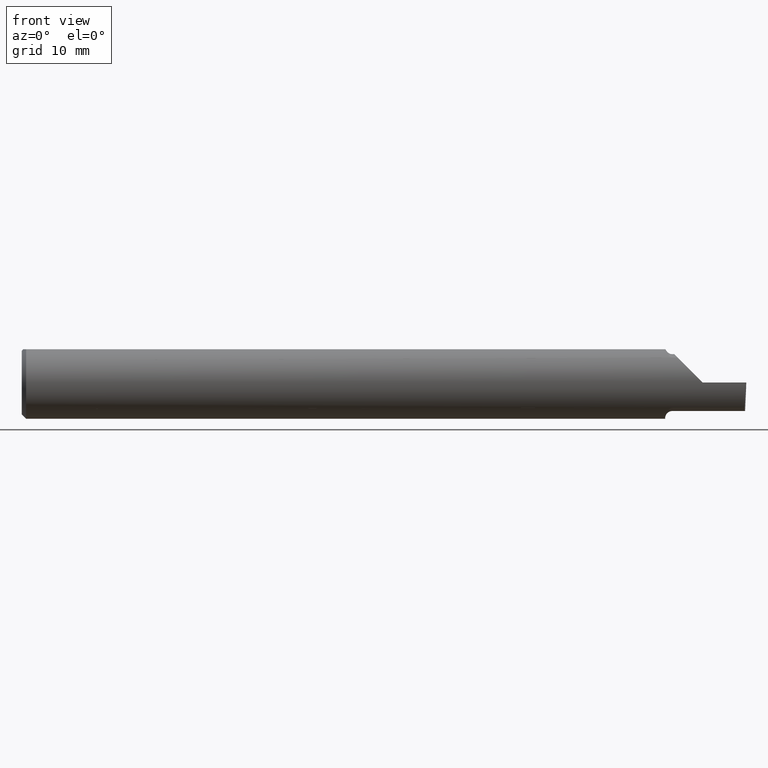
[diagram: clean part render]
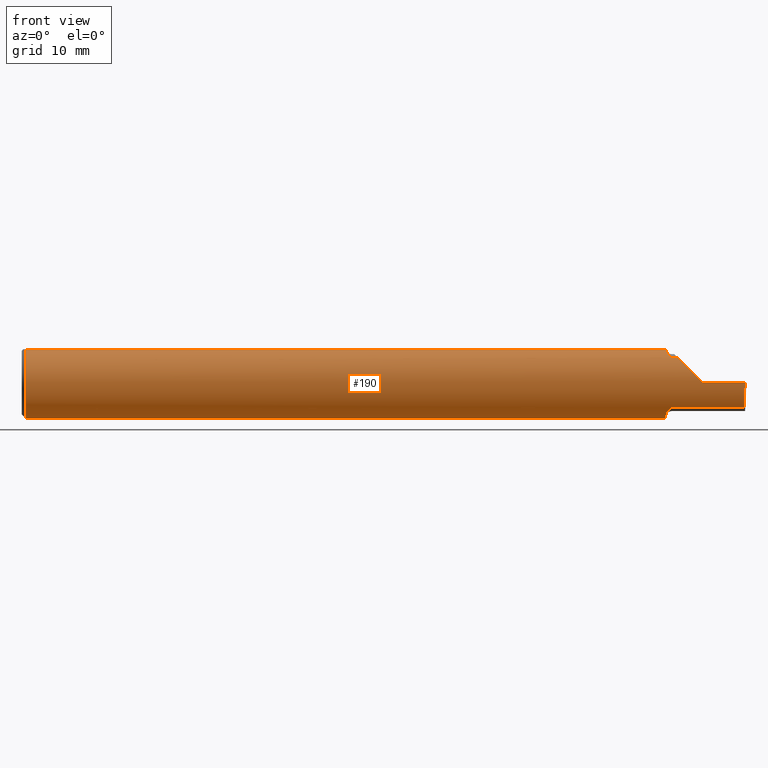
[diagram: same view with one face highlighted and labeled with its STEP entity id]
A machine part, front view. The second image highlights one B-rep face of the part: STEP entity #190.
In plain terms, the highlighted cylindrical surface (edge-blend (fillet) strip) has radius 3.1712 mm, axis along (-1, -0, -0).
Its self-contained STEP definition (entity closure, byte-faithful):
#14 = VERTEX_POINT ( 'NONE', #137 ) ;
#19 = DIRECTION ( 'NONE',  ( -1.000000000000000000, -0.000000000000000000, -0.000000000000000000 ) ) ;
#22 = EDGE_CURVE ( 'NONE', #14, #711, #694, .T. ) ;
#26 = ORIENTED_EDGE ( 'NONE', *, *, #185, .F. ) ;
#27 = VECTOR ( 'NONE', #464, 39.37007874015748143 ) ;
#41 = CARTESIAN_POINT ( 'NONE',  ( 2.350000000000000089, -0.1248500000000000026, 1.836970198721028825E-17 ) ) ;
#50 = B_SPLINE_CURVE_WITH_KNOTS ( 'NONE', 3,
 ( #439, #680, #138, #384 ),
 .UNSPECIFIED., .F., .F.,
 ( 4, 4 ),
 ( 0.001640801893433578747, 0.002088276671954489034 ),
 .UNSPECIFIED. ) ;
#56 = VERTEX_POINT ( 'NONE', #524 ) ;
#57 = CARTESIAN_POINT ( 'NONE',  ( 2.239784064659362528, -0.08911389870154562409, -0.08746251087962761406 ) ) ;
#58 = CYLINDRICAL_SURFACE ( 'NONE', #507, 0.1248500000000000026 ) ;
#59 = ORIENTED_EDGE ( 'NONE', *, *, #499, .T. ) ;
#60 = EDGE_LOOP ( 'NONE', ( #590, #718, #59, #301, #339, #26, #679, #446, #64, #345, #477, #408, #560, #466 ) ) ;
#64 = ORIENTED_EDGE ( 'NONE', *, *, #357, .F. ) ;
#73 = CARTESIAN_POINT ( 'NONE',  ( 2.245000000000000107, -0.09015216647662478711, -0.08637192471845771269 ) ) ;
#77 = EDGE_CURVE ( 'NONE', #570, #391, #168, .T. ) ;
#81 = DIRECTION ( 'NONE',  ( 0.000000000000000000, 0.000000000000000000, 1.000000000000000000 ) ) ;
#94 = DIRECTION ( 'NONE',  ( 1.000000000000000000, 0.000000000000000000, 0.000000000000000000 ) ) ;
#97 = CARTESIAN_POINT ( 'NONE',  ( 2.493072779947982820, -0.1248043149033065263, -0.09996577117162364079 ) ) ;
#100 = CARTESIAN_POINT ( 'NONE',  ( 2.234311064734461283, -0.08485061678078677228, -0.09161469295857038730 ) ) ;
#124 = CARTESIAN_POINT ( 'NONE',  ( 0.01499999999999999944, 0.000000000000000000, -0.1248500000000000026 ) ) ;
#129 = AXIS2_PLACEMENT_3D ( 'NONE', #733, #664, #135 ) ;
#135 = DIRECTION ( 'NONE',  ( 0.000000000000000000, 0.000000000000000000, -1.000000000000000000 ) ) ;
#137 = CARTESIAN_POINT ( 'NONE',  ( 2.494033449660866708, -0.09015216647662482874, -0.08637192471845768493 ) ) ;
#138 = CARTESIAN_POINT ( 'NONE',  ( 2.219999999999999751, -0.03284222813693380566, -0.1205938689030582739 ) ) ;
#139 = CARTESIAN_POINT ( 'NONE',  ( 2.221326891871132858, -0.04895916665958129077, 0.1148500000000000076 ) ) ;
#140 =( BOUNDED_CURVE ( )  B_SPLINE_CURVE ( 3, ( #159, #155, #295, #348 ),
 .UNSPECIFIED., .F., .T. ) 
 B_SPLINE_CURVE_WITH_KNOTS ( ( 4, 4 ),
 ( 0.2190942387645742062, 0.9826237902197102470 ),
 .UNSPECIFIED. ) 
 CURVE ( )  GEOMETRIC_REPRESENTATION_ITEM ( )  RATIONAL_B_SPLINE_CURVE ( ( 1.000000000000000000, 0.9520057322288819623, 0.9520057322288819623, 1.000000000000000000 ) ) 
 REPRESENTATION_ITEM ( '' )  );
#143 = CARTESIAN_POINT ( 'NONE',  ( 0.000000000000000000, 0.04895916665957456698, 0.1148500000000000076 ) ) ;
#145 = VERTEX_POINT ( 'NONE', #173 ) ;
#148 = B_SPLINE_CURVE_WITH_KNOTS ( 'NONE', 3,
 ( #221, #480, #57, #151, #100, #635, #302, #281, #785, #701, #278, #630 ),
 .UNSPECIFIED., .F., .F.,
 ( 4, 2, 2, 2, 2, 4 ),
 ( 1.963988863453036158E-07, 0.0002052720857047455423, 0.0004103477725231457476, 0.0008204991461599567834, 0.001230650519796767711, 0.001640801893433578747 ),
 .UNSPECIFIED. ) ;
#151 = CARTESIAN_POINT ( 'NONE',  ( 2.235875432832430398, -0.08647060418110448510, -0.09007670266896471156 ) ) ;
#155 = CARTESIAN_POINT ( 'NONE',  ( 2.494256244271086054, -0.1126860773865890342, -0.06285177167860771241 ) ) ;
#159 = CARTESIAN_POINT ( 'NONE',  ( 2.494033449660866708, -0.09015216647662482874, -0.08637192471845768493 ) ) ;
#164 = EDGE_CURVE ( 'NONE', #14, #56, #140, .T. ) ;
#168 = LINE ( 'NONE', #773, #180 ) ;
#173 = CARTESIAN_POINT ( 'NONE',  ( 2.220756598855983643, -0.04384999999999998621, -0.1168961077196328385 ) ) ;
#176 = CARTESIAN_POINT ( 'NONE',  ( 2.350000000000000089, -0.1248500000000000026, 1.836970198721028825E-17 ) ) ;
#180 = VECTOR ( 'NONE', #473, 39.37007874015748143 ) ;
#185 = EDGE_CURVE ( 'NONE', #404, #207, #636, .T. ) ;
#190 = ADVANCED_FACE ( 'NONE', ( #427 ), #58, .T. ) ;
#207 = VERTEX_POINT ( 'NONE', #783 ) ;
#211 = CIRCLE ( 'NONE', #661, 0.1248500000000000026 ) ;
#217 = CARTESIAN_POINT ( 'NONE',  ( 2.263628075281542529, -0.09015216647662421812, 0.08637192471845822617 ) ) ;
#221 = CARTESIAN_POINT ( 'NONE',  ( 2.245000000000000107, -0.09015216647662478711, -0.08637192471845771269 ) ) ;
#226 = CARTESIAN_POINT ( 'NONE',  ( 0.01499999999999999944, -0.04895916665957456698, 0.1148500000000000076 ) ) ;
#263 = VERTEX_POINT ( 'NONE', #176 ) ;
#265 = CARTESIAN_POINT ( 'NONE',  ( 2.222489051389916703, -0.05793447593726087225, 0.1110239341510881605 ) ) ;
#278 = CARTESIAN_POINT ( 'NONE',  ( 2.221227715916083589, -0.04883822427082840090, -0.1150249279297937410 ) ) ;
#281 = CARTESIAN_POINT ( 'NONE',  ( 2.225064983703084920, -0.06736177101644139076, -0.1052426774175049262 ) ) ;
#295 = CARTESIAN_POINT ( 'NONE',  ( 2.494835769263151537, -0.1248351010429638169, -0.03262966116142150541 ) ) ;
#301 = ORIENTED_EDGE ( 'NONE', *, *, #515, .T. ) ;
#302 = CARTESIAN_POINT ( 'NONE',  ( 2.228278800716858132, -0.07573621487658345475, -0.09938639293507163519 ) ) ;
#317 = CARTESIAN_POINT ( 'NONE',  ( 2.231053217927789767, -0.08094812012701402271, 0.09514231764808572800 ) ) ;
#324 = AXIS2_PLACEMENT_3D ( 'NONE', #334, #741, #81 ) ;
#326 = CARTESIAN_POINT ( 'NONE',  ( 2.221326891871132858, -0.04895916665958129077, 0.1148500000000000076 ) ) ;
#331 = EDGE_CURVE ( 'NONE', #483, #622, #211, .T. ) ;
#334 = CARTESIAN_POINT ( 'NONE',  ( 0.01499999999999999944, 0.000000000000000000, 0.000000000000000000 ) ) ;
#336 = CIRCLE ( 'NONE', #324, 0.1248500000000000026 ) ;
#337 = CARTESIAN_POINT ( 'NONE',  ( 2.240195245915189926, -0.08928014009842913379, 0.08728826463235836441 ) ) ;
#339 = ORIENTED_EDGE ( 'NONE', *, *, #445, .T. ) ;
#345 = ORIENTED_EDGE ( 'NONE', *, *, #331, .F. ) ;
#348 = CARTESIAN_POINT ( 'NONE',  ( 2.495688583004118666, -0.1248499869621840785, -5.705736120965713455E-05 ) ) ;
#349 = CARTESIAN_POINT ( 'NONE',  ( 2.236486677516483557, -0.08696861555848790781, 0.08959154238187717889 ) ) ;
#355 = CARTESIAN_POINT ( 'NONE',  ( 2.287163018370355072, -0.1127002472623169216, 0.06283698162964553025 ) ) ;
#356 = VERTEX_POINT ( 'NONE', #755 ) ;
#357 = EDGE_CURVE ( 'NONE', #622, #570, #336, .T. ) ;
#376 = CIRCLE ( 'NONE', #129, 0.1248500000000000026 ) ;
#378 = CARTESIAN_POINT ( 'NONE',  ( 2.224335346929731561, -0.06618116991733534460, 0.1062694618618282988 ) ) ;
#384 = CARTESIAN_POINT ( 'NONE',  ( 2.219999999999999751, -0.02715330672748003313, -0.1218614805168695830 ) ) ;
#391 = VERTEX_POINT ( 'NONE', #139 ) ;
#396 = EDGE_CURVE ( 'NONE', #511, #483, #452, .T. ) ;
#398 = CARTESIAN_POINT ( 'NONE',  ( 2.357250000000000068, -0.09015216647662482874, -0.08637192471845768493 ) ) ;
#402 = DIRECTION ( 'NONE',  ( 0.02617296143184117893, -0.0004568507411563389568, 0.9996573249755575929 ) ) ;
#404 = VERTEX_POINT ( 'NONE', #448 ) ;
#408 = ORIENTED_EDGE ( 'NONE', *, *, #604, .F. ) ;
#427 = FACE_OUTER_BOUND ( 'NONE', #60, .T. ) ;
#430 = VERTEX_POINT ( 'NONE', #444 ) ;
#437 = EDGE_CURVE ( 'NONE', #391, #404, #684, .T. ) ;
#439 = CARTESIAN_POINT ( 'NONE',  ( 2.220756598855983643, -0.04384999999999998621, -0.1168961077196328385 ) ) ;
#440 = DIRECTION ( 'NONE',  ( -1.000000000000000000, -0.000000000000000000, -0.000000000000000000 ) ) ;
#444 = CARTESIAN_POINT ( 'NONE',  ( 2.495690077103728921, -0.1248499999950964945, 8.800986592364463999E-18 ) ) ;
#445 = EDGE_CURVE ( 'NONE', #263, #207, #516, .T. ) ;
#446 = ORIENTED_EDGE ( 'NONE', *, *, #77, .F. ) ;
#448 = CARTESIAN_POINT ( 'NONE',  ( 2.245000000000000107, -0.09015216647662482874, 0.08637192471845768493 ) ) ;
#452 = LINE ( 'NONE', #143, #715 ) ;
#464 = DIRECTION ( 'NONE',  ( -1.000000000000000000, -0.000000000000000000, -0.000000000000000000 ) ) ;
#466 = ORIENTED_EDGE ( 'NONE', *, *, #487, .F. ) ;
#473 = DIRECTION ( 'NONE',  ( 1.000000000000000000, 0.000000000000000000, 0.000000000000000000 ) ) ;
#477 = ORIENTED_EDGE ( 'NONE', *, *, #396, .F. ) ;
#480 = CARTESIAN_POINT ( 'NONE',  ( 2.242259638933030708, -0.09015216647662500915, -0.08637192471845750452 ) ) ;
#483 = VERTEX_POINT ( 'NONE', #640 ) ;
#487 = EDGE_CURVE ( 'NONE', #711, #145, #148, .T. ) ;
#494 = DIRECTION ( 'NONE',  ( -1.000000000000000000, -0.000000000000000000, -0.000000000000000000 ) ) ;
#499 = EDGE_CURVE ( 'NONE', #56, #430, #574, .T. ) ;
#501 = CARTESIAN_POINT ( 'NONE',  ( 2.229117122045984889, -0.07738857672837956558, 0.09808127502721003532 ) ) ;
#507 = AXIS2_PLACEMENT_3D ( 'NONE', #782, #547, #730 ) ;
#511 = VERTEX_POINT ( 'NONE', #512 ) ;
#512 = CARTESIAN_POINT ( 'NONE',  ( 2.219999999999999751, 0.04895916665957496944, 0.1148500000000000076 ) ) ;
#515 = EDGE_CURVE ( 'NONE', #430, #263, #645, .T. ) ;
#516 =( BOUNDED_CURVE ( )  B_SPLINE_CURVE ( 3, ( #41, #543, #355, #217 ),
 .UNSPECIFIED., .F., .F. ) 
 B_SPLINE_CURVE_WITH_KNOTS ( ( 4, 4 ),
 ( 4.712388980384690562, 5.476375539154175520 ),
 .UNSPECIFIED. ) 
 CURVE ( )  GEOMETRIC_REPRESENTATION_ITEM ( )  RATIONAL_B_SPLINE_CURVE ( ( 1.000000000000000000, 0.9519489620492029847, 0.9519489620492029847, 1.000000000000000000 ) ) 
 REPRESENTATION_ITEM ( '' )  );
#517 = CARTESIAN_POINT ( 'NONE',  ( 2.242502509400850386, -0.09015216647698158503, 0.08637192471808541328 ) ) ;
#524 = CARTESIAN_POINT ( 'NONE',  ( 2.495688583004118666, -0.1248499869621840785, -5.705736120965713455E-05 ) ) ;
#528 = CARTESIAN_POINT ( 'NONE',  ( 2.245000000000000107, -0.09015216647662482874, 0.08637192471845768493 ) ) ;
#543 = CARTESIAN_POINT ( 'NONE',  ( 2.317406910344188997, -0.1248500000000000304, 0.03259308965581166062 ) ) ;
#547 = DIRECTION ( 'NONE',  ( -1.000000000000000000, -0.000000000000000000, -0.000000000000000000 ) ) ;
#559 = DIRECTION ( 'NONE',  ( 0.000000000000000000, 0.000000000000000000, 1.000000000000000000 ) ) ;
#560 = ORIENTED_EDGE ( 'NONE', *, *, #692, .F. ) ;
#566 = CARTESIAN_POINT ( 'NONE',  ( 0.01499999999999999944, 0.000000000000000000, 0.000000000000000000 ) ) ;
#570 = VERTEX_POINT ( 'NONE', #226 ) ;
#571 = VECTOR ( 'NONE', #494, 39.37007874015748143 ) ;
#574 = LINE ( 'NONE', #97, #779 ) ;
#589 = CARTESIAN_POINT ( 'NONE',  ( 2.357250000000000068, -0.09015216647662482874, 0.08637192471845768493 ) ) ;
#590 = ORIENTED_EDGE ( 'NONE', *, *, #22, .F. ) ;
#604 = EDGE_CURVE ( 'NONE', #356, #511, #376, .T. ) ;
#622 = VERTEX_POINT ( 'NONE', #124 ) ;
#630 = CARTESIAN_POINT ( 'NONE',  ( 2.220756598855983643, -0.04384999999999998621, -0.1168961077196328385 ) ) ;
#635 = CARTESIAN_POINT ( 'NONE',  ( 2.230226514481665312, -0.07966992494485879150, -0.09623747760188192113 ) ) ;
#636 = LINE ( 'NONE', #589, #740 ) ;
#640 = CARTESIAN_POINT ( 'NONE',  ( 0.01499999999999987454, 0.04895916665957496944, 0.1148500000000000076 ) ) ;
#645 = LINE ( 'NONE', #762, #27 ) ;
#661 = AXIS2_PLACEMENT_3D ( 'NONE', #566, #440, #559 ) ;
#664 = DIRECTION ( 'NONE',  ( 1.000000000000000000, 0.000000000000000000, 0.000000000000000000 ) ) ;
#679 = ORIENTED_EDGE ( 'NONE', *, *, #437, .F. ) ;
#680 = CARTESIAN_POINT ( 'NONE',  ( 2.220242610568497810, -0.03840785182185595115, -0.1189375631818110762 ) ) ;
#684 = B_SPLINE_CURVE_WITH_KNOTS ( 'NONE', 3,
 ( #326, #265, #378, #501, #317, #749, #349, #337, #517, #528 ),
 .UNSPECIFIED., .F., .F.,
 ( 4, 2, 2, 2, 4 ),
 ( 5.065792501960267767E-07, 0.0007388407002080939201, 0.001108007760687042265, 0.001292591290926511016, 0.001477174821165979550 ),
 .UNSPECIFIED. ) ;
#692 = EDGE_CURVE ( 'NONE', #145, #356, #50, .T. ) ;
#694 = LINE ( 'NONE', #398, #571 ) ;
#701 = CARTESIAN_POINT ( 'NONE',  ( 2.221929090759343861, -0.05370719728932733111, -0.1128289886859671631 ) ) ;
#711 = VERTEX_POINT ( 'NONE', #73 ) ;
#715 = VECTOR ( 'NONE', #19, 39.37007874015748143 ) ;
#718 = ORIENTED_EDGE ( 'NONE', *, *, #164, .T. ) ;
#730 = DIRECTION ( 'NONE',  ( 0.000000000000000000, 0.000000000000000000, 1.000000000000000000 ) ) ;
#733 = CARTESIAN_POINT ( 'NONE',  ( 2.219999999999999751, 0.000000000000000000, 0.000000000000000000 ) ) ;
#740 = VECTOR ( 'NONE', #94, 39.37007874015748143 ) ;
#741 = DIRECTION ( 'NONE',  ( -1.000000000000000000, -0.000000000000000000, -0.000000000000000000 ) ) ;
#749 = CARTESIAN_POINT ( 'NONE',  ( 2.234990549600782472, -0.08554147198593010926, 0.09096407607054023126 ) ) ;
#755 = CARTESIAN_POINT ( 'NONE',  ( 2.219999999999999751, -0.02715330672748003313, -0.1218614805168695830 ) ) ;
#762 = CARTESIAN_POINT ( 'NONE',  ( 3.749399456654637998E-32, -0.1248500000000000026, 3.061616997868380676E-16 ) ) ;
#773 = CARTESIAN_POINT ( 'NONE',  ( 0.000000000000000000, -0.04895916665957456698, 0.1148500000000000076 ) ) ;
#779 = VECTOR ( 'NONE', #402, 39.37007874015748854 ) ;
#782 = CARTESIAN_POINT ( 'NONE',  ( 0.000000000000000000, 0.000000000000000000, 0.000000000000000000 ) ) ;
#783 = CARTESIAN_POINT ( 'NONE',  ( 2.263628075281542529, -0.09015216647662421812, 0.08637192471845822617 ) ) ;
#785 = CARTESIAN_POINT ( 'NONE',  ( 2.223850144156349629, -0.06295012366509163126, -0.1079450122012244745 ) ) ;